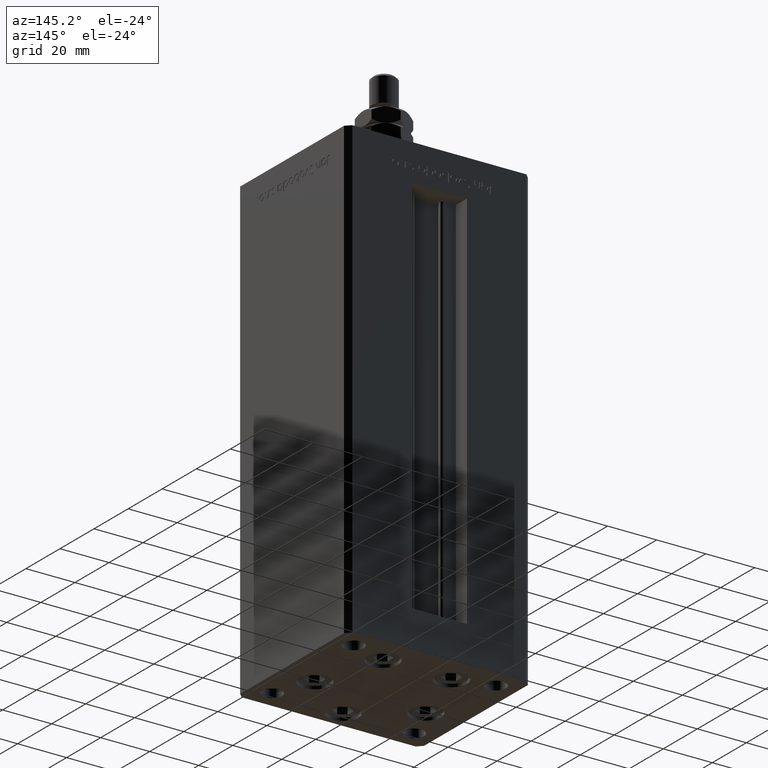
[diagram: clean part render]
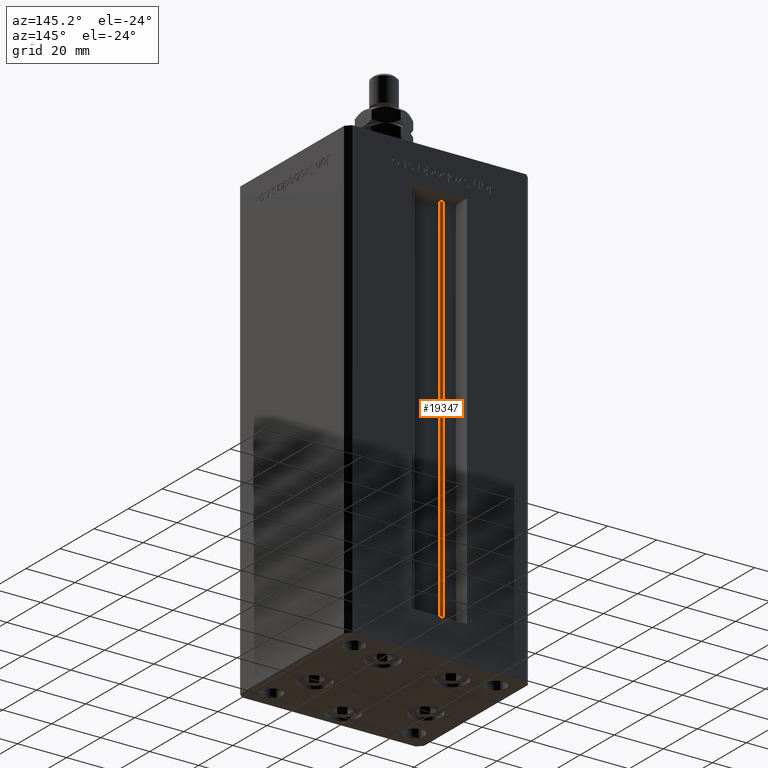
[diagram: same view with one face highlighted and labeled with its STEP entity id]
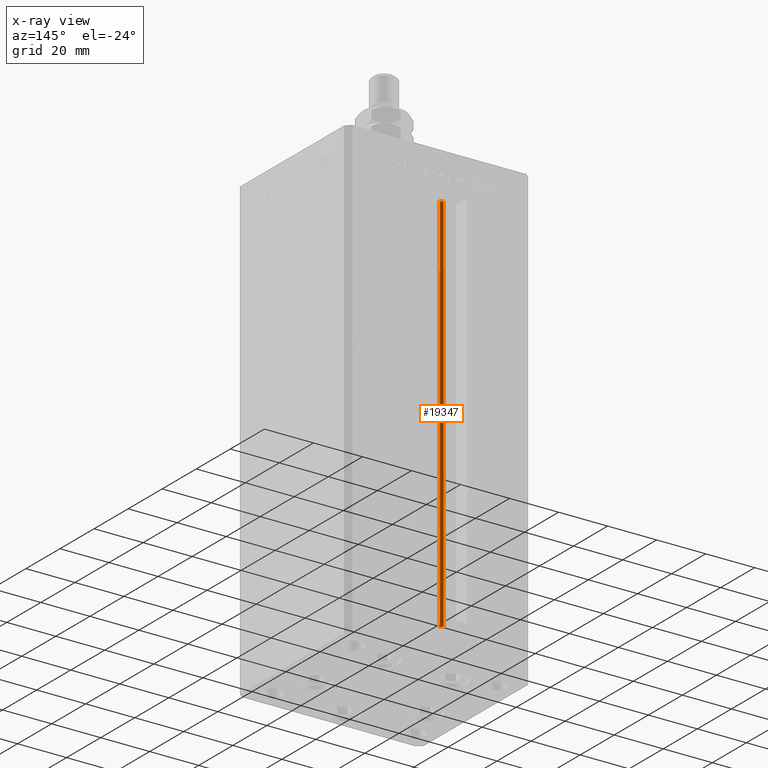
[diagram: x-ray of the same camera — body ghosted, the highlighted face saturated]
A machine part, auxiliary view. The second image highlights one B-rep face of the part: STEP entity #19347.
The next image is the same camera in x-ray: the body ghosted, the highlighted face saturated — about 0% of this face is hidden behind the body in this view.
In plain terms, the highlighted cylindrical surface (edge-blend (fillet) strip) has radius 0.9333 mm, axis along (0, 0, 1).
Its self-contained STEP definition (entity closure, byte-faithful):
#1846 = CARTESIAN_POINT ( 'NONE',  ( -6.183333333334001480, 25.99999999999999289, 0.000000000000000000 ) ) ;
#2466 = DIRECTION ( 'NONE',  ( 1.000000000000000000, 0.000000000000000000, 0.000000000000000000 ) ) ;
#2918 = AXIS2_PLACEMENT_3D ( 'NONE', #10721, #40352, #43605 ) ;
#4205 = DIRECTION ( 'NONE',  ( 1.000000000000000000, 0.000000000000000000, 0.000000000000000000 ) ) ;
#5788 = VECTOR ( 'NONE', #18462, 1000.000000000000000 ) ;
#5970 = CARTESIAN_POINT ( 'NONE',  ( -6.183333333334001480, 25.99999999999999289, 156.0000000000000000 ) ) ;
#6687 = CIRCLE ( 'NONE', #13631, 0.9333333333340008142 ) ;
#6786 = EDGE_CURVE ( 'NONE', #9024, #42626, #26987, .T. ) ;
#7109 = CARTESIAN_POINT ( 'NONE',  ( -6.183333333334001480, 25.99999999999999289, 0.000000000000000000 ) ) ;
#8857 = VECTOR ( 'NONE', #15686, 1000.000000000000000 ) ;
#9024 = VERTEX_POINT ( 'NONE', #7109 ) ;
#9910 = EDGE_LOOP ( 'NONE', ( #22453, #29483, #27247, #24845 ) ) ;
#10721 = CARTESIAN_POINT ( 'NONE',  ( -6.183333333334001480, 25.06666666666599141, 0.000000000000000000 ) ) ;
#13631 = AXIS2_PLACEMENT_3D ( 'NONE', #45526, #17273, #4205 ) ;
#14530 = FACE_OUTER_BOUND ( 'NONE', #9910, .T. ) ;
#14604 = CARTESIAN_POINT ( 'NONE',  ( -5.250000000000000000, 25.06666666666599141, 0.000000000000000000 ) ) ;
#15686 = DIRECTION ( 'NONE',  ( -0.000000000000000000, -0.000000000000000000, 1.000000000000000000 ) ) ;
#17273 = DIRECTION ( 'NONE',  ( 0.000000000000000000, 0.000000000000000000, -1.000000000000000000 ) ) ;
#17525 = CARTESIAN_POINT ( 'NONE',  ( -5.250000000000000000, 25.06666666666599141, 156.0000000000000000 ) ) ;
#18462 = DIRECTION ( 'NONE',  ( -0.000000000000000000, -0.000000000000000000, 1.000000000000000000 ) ) ;
#19083 = CARTESIAN_POINT ( 'NONE',  ( -6.183333333334001480, 25.06666666666599141, 0.000000000000000000 ) ) ;
#19347 = ADVANCED_FACE ( 'NONE', ( #14530 ), #19698, .T. ) ;
#19698 = CYLINDRICAL_SURFACE ( 'NONE', #2918, 0.9333333333340008142 ) ;
#20689 = VERTEX_POINT ( 'NONE', #5970 ) ;
#22453 = ORIENTED_EDGE ( 'NONE', *, *, #44002, .F. ) ;
#24845 = ORIENTED_EDGE ( 'NONE', *, *, #34224, .T. ) ;
#26437 = VERTEX_POINT ( 'NONE', #17525 ) ;
#26987 = CIRCLE ( 'NONE', #46901, 0.9333333333340008142 ) ;
#27247 = ORIENTED_EDGE ( 'NONE', *, *, #33016, .T. ) ;
#29483 = ORIENTED_EDGE ( 'NONE', *, *, #6786, .F. ) ;
#31847 = DIRECTION ( 'NONE',  ( -0.000000000000000000, -0.000000000000000000, -1.000000000000000000 ) ) ;
#32000 = CARTESIAN_POINT ( 'NONE',  ( -5.250000000000000000, 25.06666666666599141, 0.000000000000000000 ) ) ;
#33016 = EDGE_CURVE ( 'NONE', #9024, #20689, #35304, .T. ) ;
#34224 = EDGE_CURVE ( 'NONE', #20689, #26437, #6687, .T. ) ;
#35304 = LINE ( 'NONE', #1846, #5788 ) ;
#40352 = DIRECTION ( 'NONE',  ( -0.000000000000000000, -0.000000000000000000, 1.000000000000000000 ) ) ;
#42626 = VERTEX_POINT ( 'NONE', #14604 ) ;
#43605 = DIRECTION ( 'NONE',  ( 1.000000000000000000, 0.000000000000000000, 0.000000000000000000 ) ) ;
#44002 = EDGE_CURVE ( 'NONE', #42626, #26437, #47750, .T. ) ;
#45526 = CARTESIAN_POINT ( 'NONE',  ( -6.183333333334001480, 25.06666666666599141, 156.0000000000000000 ) ) ;
#46901 = AXIS2_PLACEMENT_3D ( 'NONE', #19083, #31847, #2466 ) ;
#47750 = LINE ( 'NONE', #32000, #8857 ) ;